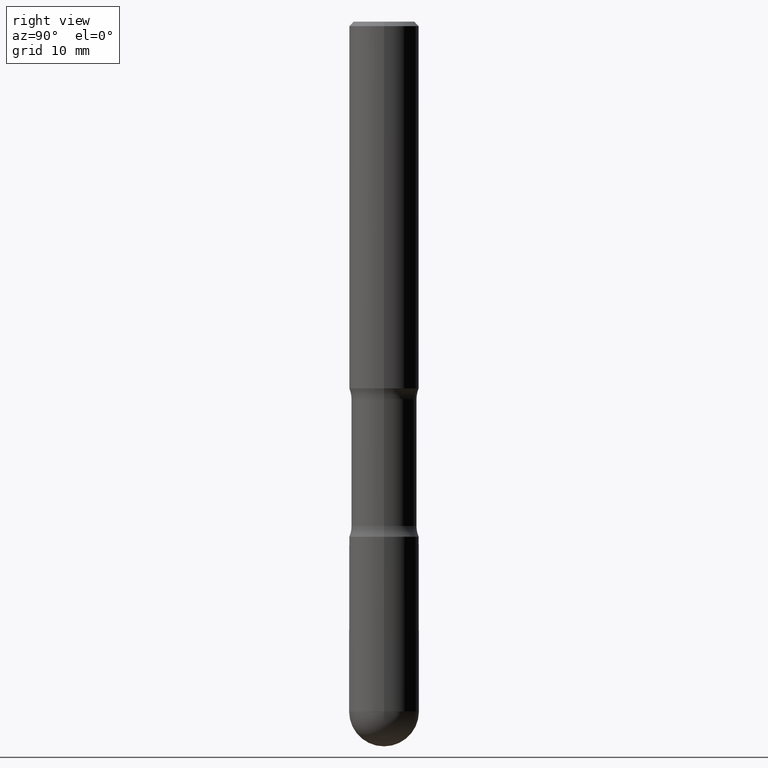
[diagram: clean part render]
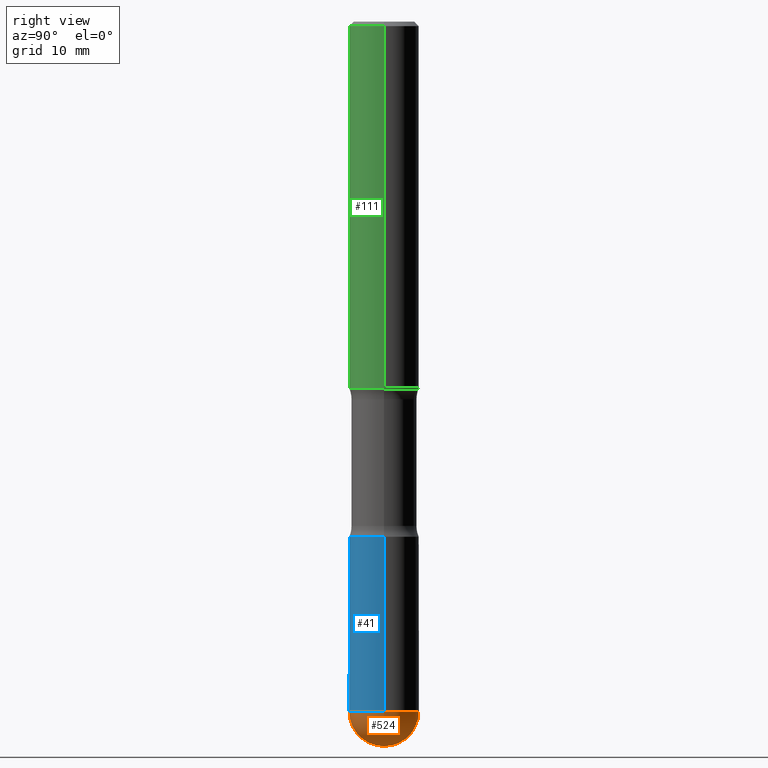
[diagram: same view with three faces highlighted in distinct colors, each labeled with its STEP entity id]
A machine part, right view with three faces highlighted in distinct colors.
Their STEP definitions:

[orange] entity #524 — the highlighted spherical surface has radius 4.0005 mm.
#3 = AXIS2_PLACEMENT_3D ( 'NONE', #345, #522, #561 ) ;
#10 = ORIENTED_EDGE ( 'NONE', *, *, #440, .F. ) ;
#12 = ORIENTED_EDGE ( 'NONE', *, *, #527, .T. ) ;
#18 = CIRCLE ( 'NONE', #167, 0.1574999999999994182 ) ;
#20 = CARTESIAN_POINT ( 'NONE',  ( 7.619357398388695210E-29, -1.083992931945137203E-14, -3.110199999999999854 ) ) ;
#21 = EDGE_CURVE ( 'NONE', #68, #295, #87, .T. ) ;
#34 = CIRCLE ( 'NONE', #125, 0.1574999999999994738 ) ;
#51 = AXIS2_PLACEMENT_3D ( 'NONE', #331, #297, #387 ) ;
#61 = DIRECTION ( 'NONE',  ( -1.000000000000000000, 7.105427357601001070E-15, -4.926315508542082329E-29 ) ) ;
#68 = VERTEX_POINT ( 'NONE', #254 ) ;
#72 = DIRECTION ( 'NONE',  ( -2.445468806185136597E-29, 3.491481338843145583E-15, 1.000000000000000000 ) ) ;
#87 = CIRCLE ( 'NONE', #491, 0.1574999999999994182 ) ;
#109 = VERTEX_POINT ( 'NONE', #247 ) ;
#125 = AXIS2_PLACEMENT_3D ( 'NONE', #20, #61, #452 ) ;
#150 = CARTESIAN_POINT ( 'NONE',  ( 7.605897080997012116E-29, -1.085920526006995152E-14, -3.110199999999999854 ) ) ;
#159 = ORIENTED_EDGE ( 'NONE', *, *, #477, .F. ) ;
#167 = AXIS2_PLACEMENT_3D ( 'NONE', #150, #72, #507 ) ;
#217 = ORIENTED_EDGE ( 'NONE', *, *, #21, .F. ) ;
#245 = DIRECTION ( 'NONE',  ( -2.445468806185136597E-29, 3.491481338843145583E-15, 1.000000000000000000 ) ) ;
#247 = CARTESIAN_POINT ( 'NONE',  ( 8.011253169890140040E-29, -1.138019353677588070E-14, -3.267699999999999605 ) ) ;
#254 = CARTESIAN_POINT ( 'NONE',  ( 0.1574999999999994182, -1.058442567870298871E-14, -3.110199999999999854 ) ) ;
#279 = EDGE_LOOP ( 'NONE', ( #159, #12, #217, #10 ) ) ;
#294 = SPHERICAL_SURFACE ( 'NONE', #3, 0.1574999999999994738 ) ;
#295 = VERTEX_POINT ( 'NONE', #442 ) ;
#297 = DIRECTION ( 'NONE',  ( 1.000000000000000000, -6.982962677686265922E-15, 4.883557194083112340E-29 ) ) ;
#298 = CIRCLE ( 'NONE', #51, 0.1574999999999994738 ) ;
#300 = CARTESIAN_POINT ( 'NONE',  ( -1.119104808822077337E-15, -0.1575000000000102707, -3.110199999999999410 ) ) ;
#331 = CARTESIAN_POINT ( 'NONE',  ( 7.619357398388695210E-29, -1.083992931945137203E-14, -3.110199999999999854 ) ) ;
#345 = CARTESIAN_POINT ( 'NONE',  ( 7.619357398388695210E-29, -1.083992931945137203E-14, -3.110199999999999854 ) ) ;
#387 = DIRECTION ( 'NONE',  ( 6.982962677686266711E-15, 1.000000000000000000, 0.000000000000000000 ) ) ;
#413 = FACE_OUTER_BOUND ( 'NONE', #279, .T. ) ;
#416 = CARTESIAN_POINT ( 'NONE',  ( 7.605897080997012116E-29, -1.085920526006995152E-14, -3.110199999999999854 ) ) ;
#440 = EDGE_CURVE ( 'NONE', #551, #68, #18, .T. ) ;
#442 = CARTESIAN_POINT ( 'NONE',  ( 1.099816621735659069E-15, 0.1574999999999886213, -3.110200000000000742 ) ) ;
#452 = DIRECTION ( 'NONE',  ( -7.105427357601000281E-15, -1.000000000000000000, 0.000000000000000000 ) ) ;
#477 = EDGE_CURVE ( 'NONE', #109, #551, #34, .T. ) ;
#491 = AXIS2_PLACEMENT_3D ( 'NONE', #416, #245, #554 ) ;
#507 = DIRECTION ( 'NONE',  ( 1.000000000000000000, -6.982962677686262766E-15, 0.000000000000000000 ) ) ;
#522 = DIRECTION ( 'NONE',  ( -1.000000000000000000, 6.982962677686266711E-15, -4.883557194083112901E-29 ) ) ;
#524 = ADVANCED_FACE ( 'NONE', ( #413 ), #294, .T. ) ;
#527 = EDGE_CURVE ( 'NONE', #109, #295, #298, .T. ) ;
#551 = VERTEX_POINT ( 'NONE', #300 ) ;
#554 = DIRECTION ( 'NONE',  ( 1.000000000000000000, -6.982962677686262766E-15, 0.000000000000000000 ) ) ;
#561 = DIRECTION ( 'NONE',  ( 6.982962677686266711E-15, 1.000000000000000000, -3.469013325287964732E-15 ) ) ;

[blue] entity #41 — the highlighted cylindrical surface (edge-blend (fillet) strip) has radius 4.0005 mm, axis along (-0, 0, 1).
#18 = CIRCLE ( 'NONE', #167, 0.1574999999999994182 ) ;
#23 = CARTESIAN_POINT ( 'NONE',  ( 5.680334943006836279E-29, -8.110012853864858834E-15, -2.322799999999999976 ) ) ;
#24 = CYLINDRICAL_SURFACE ( 'NONE', #142, 0.1574999999999994738 ) ;
#30 = DIRECTION ( 'NONE',  ( -2.445468806185136597E-29, 3.491481338843145583E-15, 1.000000000000000000 ) ) ;
#31 = CARTESIAN_POINT ( 'NONE',  ( 0.000000000000000000, 0.000000000000000000, 0.000000000000000000 ) ) ;
#33 = AXIS2_PLACEMENT_3D ( 'NONE', #419, #30, #282 ) ;
#41 = ADVANCED_FACE ( 'NONE', ( #338 ), #24, .T. ) ;
#47 = AXIS2_PLACEMENT_3D ( 'NONE', #23, #64, #502 ) ;
#50 = EDGE_CURVE ( 'NONE', #68, #363, #327, .T. ) ;
#64 = DIRECTION ( 'NONE',  ( -2.445468806185136597E-29, 3.491481338843145583E-15, 1.000000000000000000 ) ) ;
#67 = CARTESIAN_POINT ( 'NONE',  ( -0.1574999999999994182, -8.365504248145252306E-15, -3.110199999999999854 ) ) ;
#68 = VERTEX_POINT ( 'NONE', #254 ) ;
#71 = EDGE_LOOP ( 'NONE', ( #557, #293, #74, #459, #352 ) ) ;
#72 = DIRECTION ( 'NONE',  ( -2.445468806185136597E-29, 3.491481338843145583E-15, 1.000000000000000000 ) ) ;
#74 = ORIENTED_EDGE ( 'NONE', *, *, #440, .T. ) ;
#81 = CIRCLE ( 'NONE', #33, 0.1574999999999994182 ) ;
#112 = DIRECTION ( 'NONE',  ( -2.445468806185136597E-29, 3.491481338843145583E-15, 1.000000000000000000 ) ) ;
#115 = VERTEX_POINT ( 'NONE', #208 ) ;
#142 = AXIS2_PLACEMENT_3D ( 'NONE', #31, #112, #197 ) ;
#150 = CARTESIAN_POINT ( 'NONE',  ( 7.605897080997012116E-29, -1.085920526006995152E-14, -3.110199999999999854 ) ) ;
#156 = LINE ( 'NONE', #499, #427 ) ;
#162 = VECTOR ( 'NONE', #473, 39.37007874015748143 ) ;
#167 = AXIS2_PLACEMENT_3D ( 'NONE', #150, #72, #507 ) ;
#196 = DIRECTION ( 'NONE',  ( -2.445468806185136877E-29, 3.491481338843145188E-15, 1.000000000000000000 ) ) ;
#197 = DIRECTION ( 'NONE',  ( 1.000000000000000000, -6.982962677686266711E-15, 4.876176775795935793E-29 ) ) ;
#208 = CARTESIAN_POINT ( 'NONE',  ( -0.1574999999999995848, -8.365504248145252306E-15, -2.322799999999999976 ) ) ;
#254 = CARTESIAN_POINT ( 'NONE',  ( 0.1574999999999994182, -1.058442567870298871E-14, -3.110199999999999854 ) ) ;
#282 = DIRECTION ( 'NONE',  ( 1.000000000000000000, -6.982962677686262766E-15, 0.000000000000000000 ) ) ;
#285 = CIRCLE ( 'NONE', #47, 0.1574999999999995848 ) ;
#287 = CARTESIAN_POINT ( 'NONE',  ( 0.1574999999999994738, -1.099816621735583339E-15, 7.679978421878572810E-30 ) ) ;
#293 = ORIENTED_EDGE ( 'NONE', *, *, #476, .T. ) ;
#300 = CARTESIAN_POINT ( 'NONE',  ( -1.119104808822077337E-15, -0.1575000000000102707, -3.110199999999999410 ) ) ;
#327 = LINE ( 'NONE', #287, #162 ) ;
#338 = FACE_OUTER_BOUND ( 'NONE', #71, .T. ) ;
#352 = ORIENTED_EDGE ( 'NONE', *, *, #458, .F. ) ;
#363 = VERTEX_POINT ( 'NONE', #543 ) ;
#407 = EDGE_CURVE ( 'NONE', #451, #115, #156, .T. ) ;
#419 = CARTESIAN_POINT ( 'NONE',  ( 7.605897080997012116E-29, -1.085920526006995152E-14, -3.110199999999999854 ) ) ;
#427 = VECTOR ( 'NONE', #196, 39.37007874015748143 ) ;
#440 = EDGE_CURVE ( 'NONE', #551, #68, #18, .T. ) ;
#451 = VERTEX_POINT ( 'NONE', #67 ) ;
#458 = EDGE_CURVE ( 'NONE', #115, #363, #285, .T. ) ;
#459 = ORIENTED_EDGE ( 'NONE', *, *, #50, .T. ) ;
#473 = DIRECTION ( 'NONE',  ( -2.445468806185136877E-29, 3.491481338843145188E-15, 1.000000000000000000 ) ) ;
#476 = EDGE_CURVE ( 'NONE', #451, #551, #81, .T. ) ;
#499 = CARTESIAN_POINT ( 'NONE',  ( -0.1574999999999994738, 1.119104808822154054E-15, -7.747322767151451761E-30 ) ) ;
#502 = DIRECTION ( 'NONE',  ( 1.000000000000000000, -6.982962677686261977E-15, 0.000000000000000000 ) ) ;
#507 = DIRECTION ( 'NONE',  ( 1.000000000000000000, -6.982962677686262766E-15, 0.000000000000000000 ) ) ;
#543 = CARTESIAN_POINT ( 'NONE',  ( 0.1574999999999995848, -9.209829475600442370E-15, -2.322799999999999976 ) ) ;
#551 = VERTEX_POINT ( 'NONE', #300 ) ;
#557 = ORIENTED_EDGE ( 'NONE', *, *, #407, .F. ) ;

[green] entity #111 — the highlighted cylindrical surface (edge-blend (fillet) strip) has radius 4.0005 mm, axis along (0, -0, -1).
#2 = VERTEX_POINT ( 'NONE', #517 ) ;
#43 = DIRECTION ( 'NONE',  ( 2.445468806185136597E-29, -3.491481338843145583E-15, -1.000000000000000000 ) ) ;
#56 = VERTEX_POINT ( 'NONE', #339 ) ;
#79 = VECTOR ( 'NONE', #487, 39.37007874015748143 ) ;
#102 = EDGE_LOOP ( 'NONE', ( #151, #181, #269, #277 ) ) ;
#107 = VERTEX_POINT ( 'NONE', #348 ) ;
#111 = ADVANCED_FACE ( 'NONE', ( #178 ), #528, .T. ) ;
#119 = LINE ( 'NONE', #349, #79 ) ;
#124 = CARTESIAN_POINT ( 'NONE',  ( 4.890937612370288047E-31, -6.982962677686311331E-17, -0.02000000000000005940 ) ) ;
#134 = EDGE_CURVE ( 'NONE', #312, #107, #401, .T. ) ;
#144 = CARTESIAN_POINT ( 'NONE',  ( 0.1574999999999997513, -1.150358061425877697E-15, -0.02000000000000005940 ) ) ;
#145 = EDGE_CURVE ( 'NONE', #56, #2, #271, .T. ) ;
#151 = ORIENTED_EDGE ( 'NONE', *, *, #449, .F. ) ;
#170 = CARTESIAN_POINT ( 'NONE',  ( 4.043582671027126564E-29, -5.773164393777145805E-15, -1.653500000000001302 ) ) ;
#178 = FACE_OUTER_BOUND ( 'NONE', #102, .T. ) ;
#181 = ORIENTED_EDGE ( 'NONE', *, *, #134, .T. ) ;
#221 = AXIS2_PLACEMENT_3D ( 'NONE', #170, #302, #384 ) ;
#243 = EDGE_CURVE ( 'NONE', #107, #2, #119, .T. ) ;
#244 = LINE ( 'NONE', #329, #422 ) ;
#269 = ORIENTED_EDGE ( 'NONE', *, *, #243, .T. ) ;
#271 = CIRCLE ( 'NONE', #221, 0.1575000000000000011 ) ;
#277 = ORIENTED_EDGE ( 'NONE', *, *, #145, .F. ) ;
#302 = DIRECTION ( 'NONE',  ( 2.445468806185136597E-29, -3.491481338843145583E-15, -1.000000000000000000 ) ) ;
#312 = VERTEX_POINT ( 'NONE', #144 ) ;
#316 = AXIS2_PLACEMENT_3D ( 'NONE', #124, #394, #436 ) ;
#329 = CARTESIAN_POINT ( 'NONE',  ( 0.1574999999999998901, -9.190541288513873036E-15, -2.322799999999999976 ) ) ;
#339 = CARTESIAN_POINT ( 'NONE',  ( 0.1575000000000000011, -4.002025444926019936E-15, -1.653500000000001302 ) ) ;
#348 = CARTESIAN_POINT ( 'NONE',  ( -0.1574999999999997513, 1.029986994958722210E-15, -0.02000000000000005940 ) ) ;
#349 = CARTESIAN_POINT ( 'NONE',  ( -0.1574999999999998901, -7.010196232129272143E-15, -2.322799999999999976 ) ) ;
#384 = DIRECTION ( 'NONE',  ( -1.000000000000000000, 6.982962677686268288E-15, 0.000000000000000000 ) ) ;
#394 = DIRECTION ( 'NONE',  ( 2.445468806185136597E-29, -3.491481338843145583E-15, -1.000000000000000000 ) ) ;
#401 = CIRCLE ( 'NONE', #316, 0.1574999999999997513 ) ;
#422 = VECTOR ( 'NONE', #423, 39.37007874015748143 ) ;
#423 = DIRECTION ( 'NONE',  ( 2.445468806185136877E-29, -3.491481338843145188E-15, -1.000000000000000000 ) ) ;
#436 = DIRECTION ( 'NONE',  ( -1.000000000000000000, 6.982962677686266711E-15, 0.000000000000000000 ) ) ;
#449 = EDGE_CURVE ( 'NONE', #312, #56, #244, .T. ) ;
#479 = CARTESIAN_POINT ( 'NONE',  ( 5.680334943006835158E-29, -8.110012853864858834E-15, -2.322799999999999976 ) ) ;
#487 = DIRECTION ( 'NONE',  ( 2.445468806185136877E-29, -3.491481338843145188E-15, -1.000000000000000000 ) ) ;
#503 = AXIS2_PLACEMENT_3D ( 'NONE', #479, #43, #560 ) ;
#517 = CARTESIAN_POINT ( 'NONE',  ( -0.1575000000000000011, -4.673347772041558325E-15, -1.653500000000001302 ) ) ;
#528 = CYLINDRICAL_SURFACE ( 'NONE', #503, 0.1574999999999998901 ) ;
#560 = DIRECTION ( 'NONE',  ( -1.000000000000000000, 6.982962677686266711E-15, 0.000000000000000000 ) ) ;